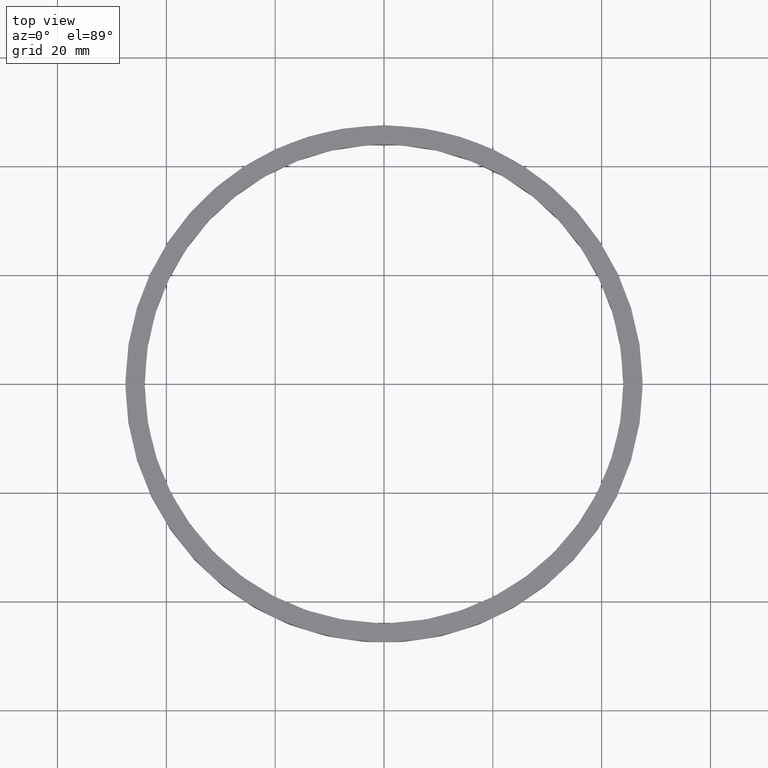
[diagram: clean part render]
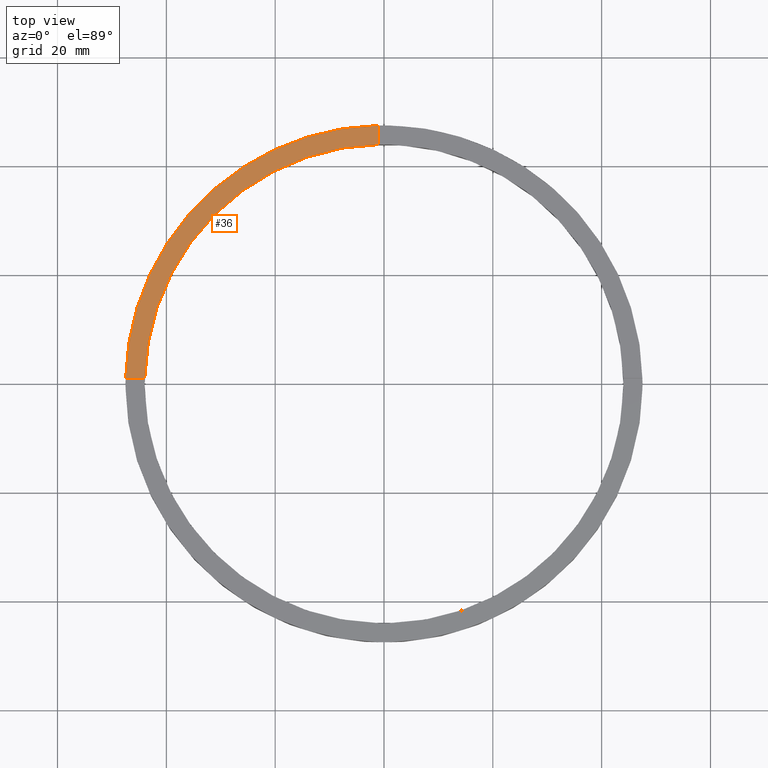
[diagram: same view with one face highlighted and labeled with its STEP entity id]
A machine part, top view. The second image highlights one B-rep face of the part: STEP entity #36.
In plain terms, the highlighted planar face has unit normal (0, 0, 1).
Its self-contained STEP definition (entity closure, byte-faithful):
#3 = DIRECTION ( 'NONE',  ( -0.000000000000000000, -1.000000000000000000, -0.000000000000000000 ) ) ;
#6 = EDGE_CURVE ( 'NONE', #697, #479, #370, .T. ) ;
#8 = DIRECTION ( 'NONE',  ( 0.000000000000000000, 0.000000000000000000, 1.000000000000000000 ) ) ;
#21 = CARTESIAN_POINT ( 'NONE',  ( 0.000000000000000000, 0.000000000000000000, 4.500000000000000000 ) ) ;
#36 = ADVANCED_FACE ( 'NONE', ( #634 ), #652, .T. ) ;
#39 = CARTESIAN_POINT ( 'NONE',  ( -47.48947251760120736, 0.9999999999999694689, 4.500000000000000000 ) ) ;
#42 = CARTESIAN_POINT ( 'NONE',  ( 0.000000000000000000, 0.000000000000000000, 4.500000000000000000 ) ) ;
#79 = AXIS2_PLACEMENT_3D ( 'NONE', #363, #173, #102 ) ;
#84 = AXIS2_PLACEMENT_3D ( 'NONE', #42, #594, #349 ) ;
#102 = DIRECTION ( 'NONE',  ( 1.000000000000000000, 0.000000000000000000, 0.000000000000000000 ) ) ;
#112 = CIRCLE ( 'NONE', #79, 47.50000000000000711 ) ;
#117 = EDGE_CURVE ( 'NONE', #741, #444, #640, .T. ) ;
#120 = CARTESIAN_POINT ( 'NONE',  ( -37.50000000000019185, 0.9999999999999713562, 4.500000000000000000 ) ) ;
#153 = EDGE_CURVE ( 'NONE', #741, #479, #112, .T. ) ;
#160 = DIRECTION ( 'NONE',  ( 1.000000000000000000, 0.000000000000000000, -0.000000000000000000 ) ) ;
#173 = DIRECTION ( 'NONE',  ( 0.000000000000000000, 0.000000000000000000, 1.000000000000000000 ) ) ;
#177 = ORIENTED_EDGE ( 'NONE', *, *, #6, .F. ) ;
#290 = CARTESIAN_POINT ( 'NONE',  ( -1.000000000000026423, 37.50000000000000711, 4.500000000000000000 ) ) ;
#296 = CARTESIAN_POINT ( 'NONE',  ( -43.98863489584554287, 0.9999999999999701350, 4.500000000000000000 ) ) ;
#349 = DIRECTION ( 'NONE',  ( 1.000000000000000000, 0.000000000000000000, 0.000000000000000000 ) ) ;
#353 = VECTOR ( 'NONE', #566, 1000.000000000000000 ) ;
#363 = CARTESIAN_POINT ( 'NONE',  ( 0.000000000000000000, 0.000000000000000000, 4.500000000000000000 ) ) ;
#370 = LINE ( 'NONE', #120, #353 ) ;
#378 = VECTOR ( 'NONE', #3, 1000.000000000000000 ) ;
#395 = CARTESIAN_POINT ( 'NONE',  ( -1.000000000000026423, 47.48947251760120736, 4.500000000000000000 ) ) ;
#434 = CIRCLE ( 'NONE', #84, 44.00000000000000000 ) ;
#444 = VERTEX_POINT ( 'NONE', #686 ) ;
#463 = ORIENTED_EDGE ( 'NONE', *, *, #153, .T. ) ;
#479 = VERTEX_POINT ( 'NONE', #39 ) ;
#488 = EDGE_LOOP ( 'NONE', ( #676, #463, #177, #709 ) ) ;
#549 = AXIS2_PLACEMENT_3D ( 'NONE', #21, #8, #160 ) ;
#566 = DIRECTION ( 'NONE',  ( -1.000000000000000000, -1.951563910473907735E-16, 0.000000000000000000 ) ) ;
#594 = DIRECTION ( 'NONE',  ( 0.000000000000000000, 0.000000000000000000, 1.000000000000000000 ) ) ;
#634 = FACE_OUTER_BOUND ( 'NONE', #488, .T. ) ;
#640 = LINE ( 'NONE', #290, #378 ) ;
#652 = PLANE ( 'NONE',  #549 ) ;
#676 = ORIENTED_EDGE ( 'NONE', *, *, #117, .F. ) ;
#686 = CARTESIAN_POINT ( 'NONE',  ( -1.000000000000026423, 43.98863489584553577, 4.500000000000000000 ) ) ;
#697 = VERTEX_POINT ( 'NONE', #296 ) ;
#709 = ORIENTED_EDGE ( 'NONE', *, *, #731, .F. ) ;
#731 = EDGE_CURVE ( 'NONE', #444, #697, #434, .T. ) ;
#741 = VERTEX_POINT ( 'NONE', #395 ) ;